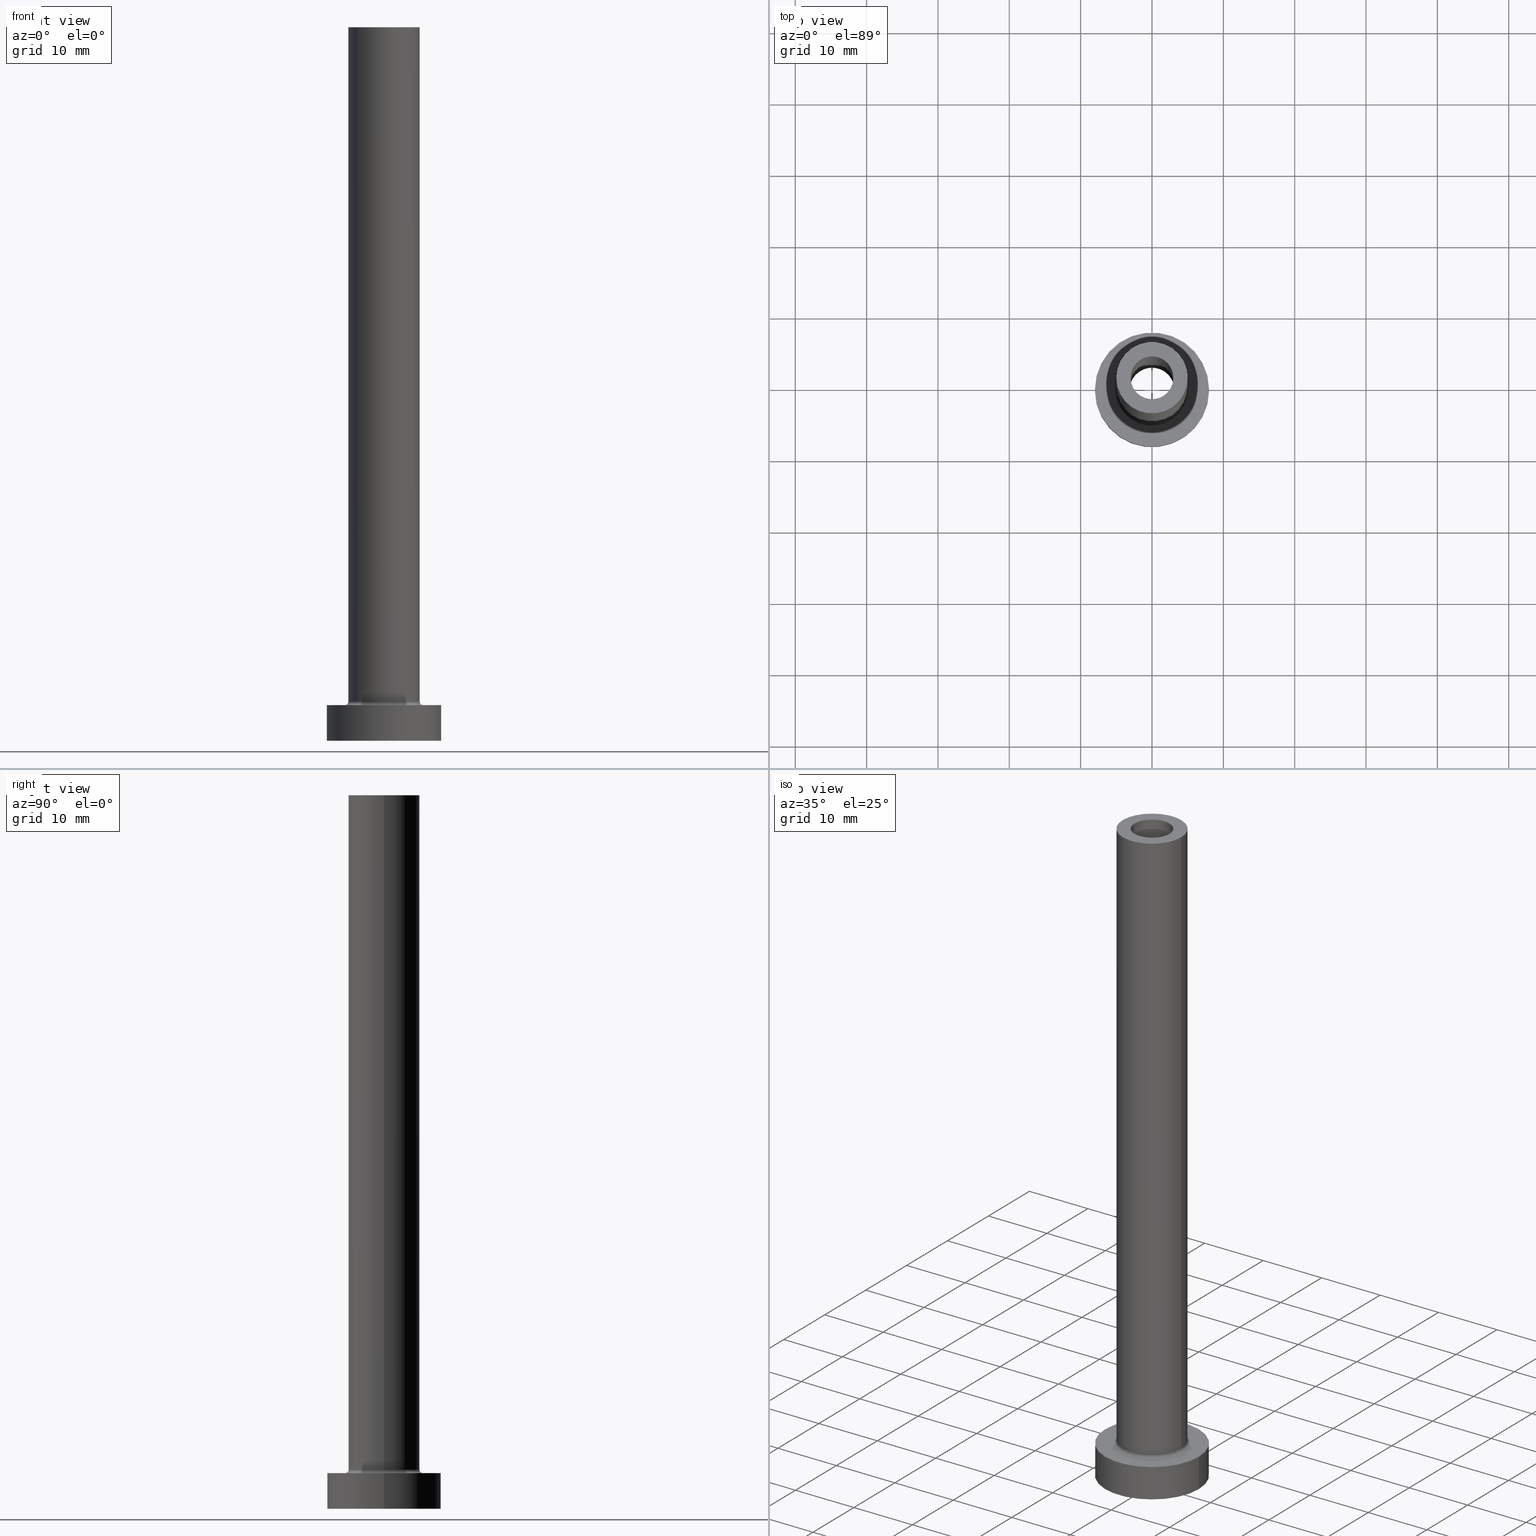
[diagram: canonical four-view strip — front | top / right | iso, engineering-drawing reading convention]
A machine part, canonical four-view strip (front | top / right | iso — engineering-drawing reading convention). The complete STEP part file that produces these views, byte-faithful:
ISO-10303-21;
HEADER;
FILE_DESCRIPTION (( 'STEP AP203' ),
    '1' );
FILE_NAME ('959d.STEP',
    '2023-02-13T10:10:27',
    ( '' ),
    ( '' ),
    'SwSTEP 2.0',
    'SolidWorks 2019',
    '' );
FILE_SCHEMA (( 'CONFIG_CONTROL_DESIGN' ));
ENDSEC;

DATA;
#1 =( NAMED_UNIT ( * ) SI_UNIT ( $, .STERADIAN. ) SOLID_ANGLE_UNIT ( ) );
#2 = ORIENTED_EDGE ( 'NONE', *, *, #260, .T. ) ;
#3 =( NAMED_UNIT ( * ) PLANE_ANGLE_UNIT ( ) SI_UNIT ( $, .RADIAN. ) );
#4 = EDGE_LOOP ( 'NONE', ( #128, #249 ) ) ;
#5 = CALENDAR_DATE ( 2023, 13, 2 ) ;
#6 = APPLICATION_CONTEXT ( 'configuration controlled 3d designs of mechanical parts and assemblies' ) ;
#7 = DIRECTION ( 'NONE',  ( -1.000000000000000000, 0.000000000000000000, 0.000000000000000000 ) ) ;
#8 = CIRCLE ( 'NONE', #15, 3.000000000000000444 ) ;
#9 = CALENDAR_DATE ( 2023, 13, 2 ) ;
#10 = ORIENTED_EDGE ( 'NONE', *, *, #90, .T. ) ;
#11 = DATE_AND_TIME ( #17, #453 ) ;
#12 = ORIENTED_EDGE ( 'NONE', *, *, #254, .F. ) ;
#13 = ADVANCED_FACE ( 'NONE', ( #389 ), #318, .T. ) ;
#14 = CARTESIAN_POINT ( 'NONE',  ( -3.000000000000000444, 0.000000000000000000, 100.0000000000000000 ) ) ;
#15 = AXIS2_PLACEMENT_3D ( 'NONE', #197, #325, #295 ) ;
#16 = CYLINDRICAL_SURFACE ( 'NONE', #324, 3.150000000000000355 ) ;
#17 = CALENDAR_DATE ( 2023, 13, 2 ) ;
#18 = EDGE_CURVE ( 'NONE', #321, #267, #390, .T. ) ;
#19 = APPROVAL_STATUS ( 'not_yet_approved' ) ;
#20 = DIRECTION ( 'NONE',  ( 1.000000000000000000, 0.000000000000000000, 0.000000000000000000 ) ) ;
#21 = AXIS2_PLACEMENT_3D ( 'NONE', #414, #207, #333 ) ;
#22 = FACE_OUTER_BOUND ( 'NONE', #413, .T. ) ;
#23 = CARTESIAN_POINT ( 'NONE',  ( 0.000000000000000000, 0.000000000000000000, 0.000000000000000000 ) ) ;
#24 = ORIENTED_EDGE ( 'NONE', *, *, #50, .F. ) ;
#25 = CARTESIAN_POINT ( 'NONE',  ( -5.000000000000000000, 0.000000000000000000, 100.0000000000000000 ) ) ;
#26 = ORIENTED_EDGE ( 'NONE', *, *, #195, .T. ) ;
#27 = DIRECTION ( 'NONE',  ( -0.000000000000000000, -0.000000000000000000, -1.000000000000000000 ) ) ;
#28 = VERTEX_POINT ( 'NONE', #244 ) ;
#29 = LINE ( 'NONE', #269, #268 ) ;
#30 = ORIENTED_EDGE ( 'NONE', *, *, #181, .F. ) ;
#31 = EDGE_CURVE ( 'NONE', #135, #165, #386, .T. ) ;
#32 = CARTESIAN_POINT ( 'NONE',  ( 8.000000000000000000, 9.797174393178825657E-16, 0.000000000000000000 ) ) ;
#33 = CARTESIAN_POINT ( 'NONE',  ( 8.000000000000000000, 9.797174393178825657E-16, 5.000000000000000000 ) ) ;
#34 = ORIENTED_EDGE ( 'NONE', *, *, #265, .T. ) ;
#35 = AXIS2_PLACEMENT_3D ( 'NONE', #180, #429, #139 ) ;
#36 = EDGE_CURVE ( 'NONE', #247, #282, #455, .T. ) ;
#37 = CARTESIAN_POINT ( 'NONE',  ( 0.000000000000000000, 0.000000000000000000, 5.000000000000000000 ) ) ;
#38 = APPLICATION_PROTOCOL_DEFINITION ( 'international standard', 'config_control_design', 1994, #6 ) ;
#39 = ORIENTED_EDGE ( 'NONE', *, *, #442, .T. ) ;
#40 = PERSON_AND_ORGANIZATION_ROLE ( 'creator' ) ;
#41 = ORIENTED_EDGE ( 'NONE', *, *, #459, .F. ) ;
#42 = AXIS2_PLACEMENT_3D ( 'NONE', #100, #409, #227 ) ;
#43 = CC_DESIGN_DATE_AND_TIME_ASSIGNMENT ( #250, #241, ( #235 ) ) ;
#44 = PERSON_AND_ORGANIZATION ( #344, #404 ) ;
#45 = ORIENTED_EDGE ( 'NONE', *, *, #239, .T. ) ;
#46 = EDGE_CURVE ( 'NONE', #273, #340, #54, .T. ) ;
#47 = COORDINATED_UNIVERSAL_TIME_OFFSET ( 1, 0, .AHEAD. ) ;
#48 = CYLINDRICAL_SURFACE ( 'NONE', #350, 3.000000000000000444 ) ;
#49 = PLANE ( 'NONE',  #418 ) ;
#50 = EDGE_CURVE ( 'NONE', #174, #210, #111, .T. ) ;
#51 = CALENDAR_DATE ( 2023, 13, 2 ) ;
#52 = CARTESIAN_POINT ( 'NONE',  ( -3.150000000000000355, 0.000000000000000000, 0.000000000000000000 ) ) ;
#53 = CC_DESIGN_PERSON_AND_ORGANIZATION_ASSIGNMENT ( #353, #288, ( #337 ) ) ;
#54 = CIRCLE ( 'NONE', #306, 5.000000000000000000 ) ;
#55 = CARTESIAN_POINT ( 'NONE',  ( 0.000000000000000000, 0.000000000000000000, 55.00000000000000711 ) ) ;
#56 = CARTESIAN_POINT ( 'NONE',  ( -3.000000000000000444, 0.000000000000000000, 100.0000000000000000 ) ) ;
#57 = AXIS2_PLACEMENT_3D ( 'NONE', #300, #64, #343 ) ;
#58 = CARTESIAN_POINT ( 'NONE',  ( 5.000000000000000000, 6.123233995736766282E-16, 100.0000000000000000 ) ) ;
#59 = VERTEX_POINT ( 'NONE', #215 ) ;
#60 = CYLINDRICAL_SURFACE ( 'NONE', #396, 8.000000000000000000 ) ;
#61 = DIRECTION ( 'NONE',  ( -1.000000000000000000, 0.000000000000000000, 0.000000000000000000 ) ) ;
#62 = EDGE_LOOP ( 'NONE', ( #30, #349 ) ) ;
#63 = EDGE_CURVE ( 'NONE', #267, #321, #221, .T. ) ;
#64 = DIRECTION ( 'NONE',  ( 0.000000000000000000, 0.000000000000000000, 1.000000000000000000 ) ) ;
#65 = ORIENTED_EDGE ( 'NONE', *, *, #125, .T. ) ;
#66 = FACE_OUTER_BOUND ( 'NONE', #270, .T. ) ;
#67 = VERTEX_POINT ( 'NONE', #52 ) ;
#68 = CARTESIAN_POINT ( 'NONE',  ( 0.000000000000000000, 0.000000000000000000, 63.90954544295050965 ) ) ;
#69 = CARTESIAN_POINT ( 'NONE',  ( 0.000000000000000000, 0.000000000000000000, 100.0000000000000000 ) ) ;
#70 = ORIENTED_EDGE ( 'NONE', *, *, #305, .T. ) ;
#71 = DIRECTION ( 'NONE',  ( -0.000000000000000000, -0.000000000000000000, -1.000000000000000000 ) ) ;
#72 = CARTESIAN_POINT ( 'NONE',  ( 0.000000000000000000, 0.000000000000000000, 0.000000000000000000 ) ) ;
#73 = CARTESIAN_POINT ( 'NONE',  ( 0.000000000000000000, 0.000000000000000000, 0.000000000000000000 ) ) ;
#74 = EDGE_LOOP ( 'NONE', ( #336, #45, #151, #70 ) ) ;
#75 = CC_DESIGN_DATE_AND_TIME_ASSIGNMENT ( #11, #86, ( #452 ) ) ;
#76 = ADVANCED_FACE ( 'NONE', ( #401 ), #297, .F. ) ;
#77 = ORIENTED_EDGE ( 'NONE', *, *, #265, .F. ) ;
#78 = AXIS2_PLACEMENT_3D ( 'NONE', #446, #408, #266 ) ;
#79 = CC_DESIGN_APPROVAL ( #103, ( #235 ) ) ;
#80 = DIRECTION ( 'NONE',  ( 0.000000000000000000, 0.000000000000000000, 1.000000000000000000 ) ) ;
#81 = CLOSED_SHELL ( 'NONE', ( #338, #209, #161, #13, #367, #319, #97, #212, #290, #274, #76, #425, #354, #131 ) ) ;
#82 = APPROVAL_DATE_TIME ( #400, #261 ) ;
#83 = PERSON_AND_ORGANIZATION_ROLE ( 'creator' ) ;
#84 = CARTESIAN_POINT ( 'NONE',  ( 0.000000000000000000, 0.000000000000000000, 5.000000000000000000 ) ) ;
#85 = AXIS2_PLACEMENT_3D ( 'NONE', #118, #292, #399 ) ;
#86 = DATE_TIME_ROLE ( 'classification_date' ) ;
#87 = CARTESIAN_POINT ( 'NONE',  ( 0.000000000000000000, 0.000000000000000000, 5.500000000000005329 ) ) ;
#88 = LINE ( 'NONE', #56, #342 ) ;
#89 = CARTESIAN_POINT ( 'NONE',  ( -8.000000000000000000, 0.000000000000000000, 0.000000000000000000 ) ) ;
#90 = EDGE_CURVE ( 'NONE', #107, #28, #253, .T. ) ;
#91 = CIRCLE ( 'NONE', #122, 3.000000000000000444 ) ;
#92 = LOCAL_TIME ( 11, 10, 27.00000000000000000, #296 ) ;
#93 = CARTESIAN_POINT ( 'NONE',  ( 5.000000000000000000, 6.123233995736766282E-16, 100.0000000000000000 ) ) ;
#94 = ORIENTED_EDGE ( 'NONE', *, *, #239, .F. ) ;
#95 = DIRECTION ( 'NONE',  ( 1.000000000000000000, 0.000000000000000000, 0.000000000000000000 ) ) ;
#96 = ORIENTED_EDGE ( 'NONE', *, *, #391, .T. ) ;
#97 = ADVANCED_FACE ( 'NONE', ( #436, #222 ), #49, .T. ) ;
#98 = CARTESIAN_POINT ( 'NONE',  ( 0.000000000000000000, 0.000000000000000000, 100.0000000000000000 ) ) ;
#99 = EDGE_LOOP ( 'NONE', ( #187, #242 ) ) ;
#100 = CARTESIAN_POINT ( 'NONE',  ( 0.000000000000000000, 0.000000000000000000, 100.0000000000000000 ) ) ;
#101 = ORIENTED_EDGE ( 'NONE', *, *, #18, .T. ) ;
#102 = EDGE_LOOP ( 'NONE', ( #383, #94 ) ) ;
#103 = APPROVAL ( #137, 'NEUR�EN�' ) ;
#104 = LINE ( 'NONE', #394, #341 ) ;
#105 = VERTEX_POINT ( 'NONE', #14 ) ;
#106 = LINE ( 'NONE', #388, #198 ) ;
#107 = VERTEX_POINT ( 'NONE', #360 ) ;
#108 = AXIS2_PLACEMENT_3D ( 'NONE', #362, #328, #326 ) ;
#109 = CARTESIAN_POINT ( 'NONE',  ( -8.000000000000000000, 0.000000000000000000, 5.000000000000000000 ) ) ;
#110 = CARTESIAN_POINT ( 'NONE',  ( 0.000000000000000000, 0.000000000000000000, 5.000000000000000000 ) ) ;
#111 = CIRCLE ( 'NONE', #327, 5.500000000000000000 ) ;
#112 = EDGE_CURVE ( 'NONE', #358, #345, #145, .T. ) ;
#113 = LINE ( 'NONE', #33, #461 ) ;
#114 = DIRECTION ( 'NONE',  ( 0.000000000000000000, 0.000000000000000000, 1.000000000000000000 ) ) ;
#115 = CARTESIAN_POINT ( 'NONE',  ( 5.500000000000000000, 0.000000000000000000, 5.000000000000002665 ) ) ;
#116 = CIRCLE ( 'NONE', #426, 3.150000000000000355 ) ;
#117 = DIRECTION ( 'NONE',  ( 0.000000000000000000, 0.000000000000000000, 1.000000000000000000 ) ) ;
#118 = CARTESIAN_POINT ( 'NONE',  ( -5.500000000000000000, 6.735557395310442023E-16, 5.500000000000005329 ) ) ;
#119 = CC_DESIGN_APPROVAL ( #384, ( #452 ) ) ;
#120 = DIRECTION ( 'NONE',  ( -1.000000000000000000, 0.000000000000000000, 0.000000000000000000 ) ) ;
#121 = AXIS2_PLACEMENT_3D ( 'NONE', #185, #114, #395 ) ;
#122 = AXIS2_PLACEMENT_3D ( 'NONE', #259, #220, #20 ) ;
#123 = DIRECTION ( 'NONE',  ( 0.000000000000000000, 0.000000000000000000, 1.000000000000000000 ) ) ;
#124 = AXIS2_PLACEMENT_3D ( 'NONE', #69, #431, #7 ) ;
#125 = EDGE_CURVE ( 'NONE', #358, #210, #370, .T. ) ;
#126 = DIRECTION ( 'NONE',  ( 1.000000000000000000, 0.000000000000000000, -0.000000000000000000 ) ) ;
#127 = CARTESIAN_POINT ( 'NONE',  ( -8.000000000000000000, 0.000000000000000000, 5.000000000000000000 ) ) ;
#128 = ORIENTED_EDGE ( 'NONE', *, *, #305, .F. ) ;
#129 = CIRCLE ( 'NONE', #316, 3.150000000000000355 ) ;
#130 = CYLINDRICAL_SURFACE ( 'NONE', #432, 8.000000000000000000 ) ;
#131 = ADVANCED_FACE ( 'NONE', ( #22 ), #48, .F. ) ;
#132 = PLANE ( 'NONE',  #451 ) ;
#133 = ORIENTED_EDGE ( 'NONE', *, *, #112, .T. ) ;
#134 = FACE_OUTER_BOUND ( 'NONE', #233, .T. ) ;
#135 = VERTEX_POINT ( 'NONE', #441 ) ;
#136 = CIRCLE ( 'NONE', #78, 0.5000000000000004441 ) ;
#137 = APPROVAL_STATUS ( 'not_yet_approved' ) ;
#138 = EDGE_LOOP ( 'NONE', ( #280, #10 ) ) ;
#139 = DIRECTION ( 'NONE',  ( 1.000000000000000000, 0.000000000000000000, 0.000000000000000000 ) ) ;
#140 = DIRECTION ( 'NONE',  ( 1.000000000000000000, 0.000000000000000000, 0.000000000000000000 ) ) ;
#141 = MECHANICAL_CONTEXT ( 'NONE', #439, 'mechanical' ) ;
#142 = ORIENTED_EDGE ( 'NONE', *, *, #419, .T. ) ;
#143 = UNCERTAINTY_MEASURE_WITH_UNIT (LENGTH_MEASURE( 1.000000000000000082E-05 ), #148, 'distance_accuracy_value', 'NONE');
#144 = DATE_AND_TIME ( #5, #238 ) ;
#145 = CIRCLE ( 'NONE', #216, 5.000000000000000000 ) ;
#146 = DIRECTION ( 'NONE',  ( 0.000000000000000000, 0.000000000000000000, 1.000000000000000000 ) ) ;
#147 = EDGE_CURVE ( 'NONE', #28, #107, #8, .T. ) ;
#148 =( LENGTH_UNIT ( ) NAMED_UNIT ( * ) SI_UNIT ( .MILLI., .METRE. ) );
#149 = DIRECTION ( 'NONE',  ( 0.000000000000000000, 0.000000000000000000, 1.000000000000000000 ) ) ;
#150 = PERSON_AND_ORGANIZATION_ROLE ( 'classification_officer' ) ;
#151 = ORIENTED_EDGE ( 'NONE', *, *, #332, .T. ) ;
#152 = AXIS2_PLACEMENT_3D ( 'NONE', #55, #192, #323 ) ;
#153 = DIRECTION ( 'NONE',  ( 1.000000000000000000, 0.000000000000000000, 0.000000000000000000 ) ) ;
#154 = CIRCLE ( 'NONE', #330, 5.000000000000000000 ) ;
#155 = CARTESIAN_POINT ( 'NONE',  ( 0.000000000000000000, 0.000000000000000000, 63.90954544295050965 ) ) ;
#156 = COORDINATED_UNIVERSAL_TIME_OFFSET ( 1, 0, .AHEAD. ) ;
#157 = DIRECTION ( 'NONE',  ( -1.000000000000000000, 0.000000000000000000, 0.000000000000000000 ) ) ;
#158 = CC_DESIGN_PERSON_AND_ORGANIZATION_ASSIGNMENT ( #361, #150, ( #452 ) ) ;
#159 = PERSON_AND_ORGANIZATION ( #344, #404 ) ;
#160 = PLANE ( 'NONE',  #162 ) ;
#161 = ADVANCED_FACE ( 'NONE', ( #405 ), #255, .F. ) ;
#162 = AXIS2_PLACEMENT_3D ( 'NONE', #298, #263, #407 ) ;
#163 = CARTESIAN_POINT ( 'NONE',  ( 0.000000000000000000, 0.000000000000000000, 100.0000000000000000 ) ) ;
#164 = DIRECTION ( 'NONE',  ( -0.000000000000000000, -0.000000000000000000, -1.000000000000000000 ) ) ;
#165 = VERTEX_POINT ( 'NONE', #257 ) ;
#166 = FACE_OUTER_BOUND ( 'NONE', #102, .T. ) ;
#167 = ORIENTED_EDGE ( 'NONE', *, *, #260, .F. ) ;
#168 = AXIS2_PLACEMENT_3D ( 'NONE', #378, #164, #416 ) ;
#169 = DIRECTION ( 'NONE',  ( -0.000000000000000000, -0.000000000000000000, -1.000000000000000000 ) ) ;
#170 = VERTEX_POINT ( 'NONE', #366 ) ;
#171 = CARTESIAN_POINT ( 'NONE',  ( 5.000000000000000000, 6.123233995736766282E-16, 5.500000000000005329 ) ) ;
#172 = ORIENTED_EDGE ( 'NONE', *, *, #442, .F. ) ;
#173 = DIRECTION ( 'NONE',  ( 0.000000000000000000, 0.000000000000000000, 1.000000000000000000 ) ) ;
#174 = VERTEX_POINT ( 'NONE', #115 ) ;
#175 = EDGE_CURVE ( 'NONE', #170, #105, #91, .T. ) ;
#176 = ORIENTED_EDGE ( 'NONE', *, *, #50, .T. ) ;
#177 = AXIS2_PLACEMENT_3D ( 'NONE', #72, #149, #140 ) ;
#178 = DIRECTION ( 'NONE',  ( 1.000000000000000000, 0.000000000000000000, 0.000000000000000000 ) ) ;
#179 = DIRECTION ( 'NONE',  ( 0.000000000000000000, 0.000000000000000000, 1.000000000000000000 ) ) ;
#180 = CARTESIAN_POINT ( 'NONE',  ( 0.000000000000000000, 0.000000000000000000, 5.000000000000000000 ) ) ;
#181 = EDGE_CURVE ( 'NONE', #105, #170, #387, .T. ) ;
#182 = ORIENTED_EDGE ( 'NONE', *, *, #252, .F. ) ;
#183 = DESIGN_CONTEXT ( 'detailed design', #6, 'design' ) ;
#184 = APPLICATION_PROTOCOL_DEFINITION ( 'international standard', 'config_control_design', 1994, #439 ) ;
#185 = CARTESIAN_POINT ( 'NONE',  ( 0.000000000000000000, 0.000000000000000000, 0.000000000000000000 ) ) ;
#186 = PERSON_AND_ORGANIZATION ( #344, #404 ) ;
#187 = ORIENTED_EDGE ( 'NONE', *, *, #63, .F. ) ;
#188 = APPROVAL_DATE_TIME ( #258, #384 ) ;
#189 = FACE_OUTER_BOUND ( 'NONE', #449, .T. ) ;
#190 = CC_DESIGN_APPROVAL ( #261, ( #331 ) ) ;
#191 = SHAPE_DEFINITION_REPRESENTATION ( #308, #447 ) ;
#192 = DIRECTION ( 'NONE',  ( 0.000000000000000000, 0.000000000000000000, 1.000000000000000000 ) ) ;
#193 = APPROVAL_ROLE ( '' ) ;
#194 = CARTESIAN_POINT ( 'NONE',  ( 0.000000000000000000, 0.000000000000000000, 100.0000000000000000 ) ) ;
#195 = EDGE_CURVE ( 'NONE', #210, #174, #444, .T. ) ;
#196 = PRODUCT_RELATED_PRODUCT_CATEGORY ( 'detail', '', ( #337 ) ) ;
#197 = CARTESIAN_POINT ( 'NONE',  ( 0.000000000000000000, 0.000000000000000000, 55.00000000000000711 ) ) ;
#198 = VECTOR ( 'NONE', #246, 1000.000000000000000 ) ;
#199 = FACE_BOUND ( 'NONE', #62, .T. ) ;
#200 = ORIENTED_EDGE ( 'NONE', *, *, #195, .F. ) ;
#201 = CYLINDRICAL_SURFACE ( 'NONE', #309, 3.000000000000000444 ) ;
#202 = EDGE_LOOP ( 'NONE', ( #456, #289 ) ) ;
#203 = DIRECTION ( 'NONE',  ( 0.000000000000000000, 0.000000000000000000, -1.000000000000000000 ) ) ;
#204 = ORIENTED_EDGE ( 'NONE', *, *, #147, .F. ) ;
#205 = AXIS2_PLACEMENT_3D ( 'NONE', #68, #385, #283 ) ;
#206 = CARTESIAN_POINT ( 'NONE',  ( 8.000000000000000000, 9.797174393178825657E-16, 5.000000000000000000 ) ) ;
#207 = DIRECTION ( 'NONE',  ( 0.000000000000000000, 0.000000000000000000, 1.000000000000000000 ) ) ;
#208 = ORIENTED_EDGE ( 'NONE', *, *, #406, .F. ) ;
#209 = ADVANCED_FACE ( 'NONE', ( #189 ), #16, .F. ) ;
#210 = VERTEX_POINT ( 'NONE', #402 ) ;
#211 = ORIENTED_EDGE ( 'NONE', *, *, #112, .F. ) ;
#212 = ADVANCED_FACE ( 'NONE', ( #224, #226 ), #160, .F. ) ;
#213 = EDGE_LOOP ( 'NONE', ( #334, #373 ) ) ;
#214 = MANIFOLD_SOLID_BREP ( 'Odebrat vysunut�m4', #81 ) ;
#215 = CARTESIAN_POINT ( 'NONE',  ( -3.150000000000000355, 0.000000000000000000, 55.00000000000000711 ) ) ;
#216 = AXIS2_PLACEMENT_3D ( 'NONE', #87, #329, #153 ) ;
#217 = ORIENTED_EDGE ( 'NONE', *, *, #175, .T. ) ;
#218 = DIRECTION ( 'NONE',  ( 1.000000000000000000, 0.000000000000000000, -0.000000000000000000 ) ) ;
#219 = SECURITY_CLASSIFICATION_LEVEL ( 'unclassified' ) ;
#220 = DIRECTION ( 'NONE',  ( 0.000000000000000000, 0.000000000000000000, 1.000000000000000000 ) ) ;
#221 = CIRCLE ( 'NONE', #121, 8.000000000000000000 ) ;
#222 = FACE_OUTER_BOUND ( 'NONE', #202, .T. ) ;
#223 = EDGE_CURVE ( 'NONE', #105, #28, #88, .T. ) ;
#224 = FACE_BOUND ( 'NONE', #4, .T. ) ;
#225 = PERSON_AND_ORGANIZATION_ROLE ( 'design_supplier' ) ;
#226 = FACE_OUTER_BOUND ( 'NONE', #99, .T. ) ;
#227 = DIRECTION ( 'NONE',  ( 1.000000000000000000, 0.000000000000000000, -0.000000000000000000 ) ) ;
#228 = CIRCLE ( 'NONE', #35, 8.000000000000000000 ) ;
#229 = CC_DESIGN_PERSON_AND_ORGANIZATION_ASSIGNMENT ( #427, #40, ( #235 ) ) ;
#230 = DIRECTION ( 'NONE',  ( 0.000000000000000000, 0.000000000000000000, 1.000000000000000000 ) ) ;
#231 = ORIENTED_EDGE ( 'NONE', *, *, #36, .F. ) ;
#232 = DIRECTION ( 'NONE',  ( 0.000000000000000000, 0.000000000000000000, -1.000000000000000000 ) ) ;
#233 = EDGE_LOOP ( 'NONE', ( #236, #142, #204, #355 ) ) ;
#234 = DIRECTION ( 'NONE',  ( 1.000000000000000000, 0.000000000000000000, 0.000000000000000000 ) ) ;
#235 = PRODUCT_DEFINITION ( 'NEZN�M�', '', #331, #183 ) ;
#236 = ORIENTED_EDGE ( 'NONE', *, *, #181, .T. ) ;
#237 = AXIS2_PLACEMENT_3D ( 'NONE', #454, #346, #275 ) ;
#238 = LOCAL_TIME ( 11, 10, 27.00000000000000000, #279 ) ;
#239 = EDGE_CURVE ( 'NONE', #135, #59, #403, .T. ) ;
#240 = DIRECTION ( 'NONE',  ( -0.000000000000000000, -0.000000000000000000, -1.000000000000000000 ) ) ;
#241 = DATE_TIME_ROLE ( 'creation_date' ) ;
#242 = ORIENTED_EDGE ( 'NONE', *, *, #18, .F. ) ;
#243 = DIRECTION ( 'NONE',  ( 1.000000000000000000, 0.000000000000000000, 0.000000000000000000 ) ) ;
#244 = CARTESIAN_POINT ( 'NONE',  ( -3.000000000000000444, 0.000000000000000000, 55.00000000000000711 ) ) ;
#245 = AXIS2_PLACEMENT_3D ( 'NONE', #434, #117, #364 ) ;
#246 = DIRECTION ( 'NONE',  ( 0.000000000000000000, 0.000000000000000000, -1.000000000000000000 ) ) ;
#247 = VERTEX_POINT ( 'NONE', #206 ) ;
#248 = AXIS2_PLACEMENT_3D ( 'NONE', #37, #146, #287 ) ;
#249 = ORIENTED_EDGE ( 'NONE', *, *, #374, .F. ) ;
#250 = DATE_AND_TIME ( #9, #433 ) ;
#251 = ORIENTED_EDGE ( 'NONE', *, *, #31, .T. ) ;
#252 = EDGE_CURVE ( 'NONE', #273, #345, #272, .T. ) ;
#253 = CIRCLE ( 'NONE', #152, 3.000000000000000444 ) ;
#254 = EDGE_CURVE ( 'NONE', #340, #273, #154, .T. ) ;
#255 = TOROIDAL_SURFACE ( 'NONE', #245, 5.500000000000000000, 0.5000000000000000000 ) ;
#256 = DIRECTION ( 'NONE',  ( 1.000000000000000000, 0.000000000000000000, 0.000000000000000000 ) ) ;
#257 = CARTESIAN_POINT ( 'NONE',  ( 3.150000000000000355, 3.857637417314163182E-16, 0.000000000000000000 ) ) ;
#258 = DATE_AND_TIME ( #51, #322 ) ;
#259 = CARTESIAN_POINT ( 'NONE',  ( 0.000000000000000000, 0.000000000000000000, 100.0000000000000000 ) ) ;
#260 = EDGE_CURVE ( 'NONE', #345, #174, #136, .T. ) ;
#261 = APPROVAL ( #440, 'NEUR�EN�' ) ;
#262 = DIRECTION ( 'NONE',  ( 0.000000000000000000, 0.000000000000000000, 1.000000000000000000 ) ) ;
#263 = DIRECTION ( 'NONE',  ( 0.000000000000000000, 0.000000000000000000, 1.000000000000000000 ) ) ;
#264 = CARTESIAN_POINT ( 'NONE',  ( 0.000000000000000000, 0.000000000000000000, 5.000000000000000000 ) ) ;
#265 = EDGE_CURVE ( 'NONE', #345, #358, #410, .T. ) ;
#266 = DIRECTION ( 'NONE',  ( 0.000000000000000000, 0.000000000000000000, -1.000000000000000000 ) ) ;
#267 = VERTEX_POINT ( 'NONE', #89 ) ;
#268 = VECTOR ( 'NONE', #232, 1000.000000000000000 ) ;
#269 = CARTESIAN_POINT ( 'NONE',  ( -3.150000000000000355, 0.000000000000000000, 63.90954544295050965 ) ) ;
#270 = EDGE_LOOP ( 'NONE', ( #231, #39, #101, #41 ) ) ;
#271 = CC_DESIGN_PERSON_AND_ORGANIZATION_ASSIGNMENT ( #320, #225, ( #331 ) ) ;
#272 = LINE ( 'NONE', #93, #363 ) ;
#273 = VERTEX_POINT ( 'NONE', #58 ) ;
#274 = ADVANCED_FACE ( 'NONE', ( #199, #372 ), #339, .T. ) ;
#275 = DIRECTION ( 'NONE',  ( 1.000000000000000000, 0.000000000000000000, 0.000000000000000000 ) ) ;
#276 = ORIENTED_EDGE ( 'NONE', *, *, #223, .T. ) ;
#277 = CIRCLE ( 'NONE', #57, 3.150000000000000355 ) ;
#278 = APPROVAL_PERSON_ORGANIZATION ( #44, #103, #460 ) ;
#279 = COORDINATED_UNIVERSAL_TIME_OFFSET ( 1, 0, .AHEAD. ) ;
#280 = ORIENTED_EDGE ( 'NONE', *, *, #147, .T. ) ;
#281 = DIRECTION ( 'NONE',  ( -1.000000000000000000, 0.000000000000000000, 0.000000000000000000 ) ) ;
#282 = VERTEX_POINT ( 'NONE', #127 ) ;
#283 = DIRECTION ( 'NONE',  ( -1.000000000000000000, 0.000000000000000000, 0.000000000000000000 ) ) ;
#284 = CARTESIAN_POINT ( 'NONE',  ( 3.150000000000000355, 3.857637417314163182E-16, 63.90954544295050965 ) ) ;
#285 = VECTOR ( 'NONE', #71, 1000.000000000000000 ) ;
#286 = APPROVAL_DATE_TIME ( #144, #103 ) ;
#287 = DIRECTION ( 'NONE',  ( 1.000000000000000000, 0.000000000000000000, 0.000000000000000000 ) ) ;
#288 = PERSON_AND_ORGANIZATION_ROLE ( 'design_owner' ) ;
#289 = ORIENTED_EDGE ( 'NONE', *, *, #36, .T. ) ;
#290 = ADVANCED_FACE ( 'NONE', ( #335 ), #457, .T. ) ;
#291 = ORIENTED_EDGE ( 'NONE', *, *, #294, .T. ) ;
#292 = DIRECTION ( 'NONE',  ( 1.224646799147353207E-16, 1.000000000000000000, -0.000000000000000000 ) ) ;
#293 = DIRECTION ( 'NONE',  ( 0.000000000000000000, 0.000000000000000000, -1.000000000000000000 ) ) ;
#294 = EDGE_CURVE ( 'NONE', #59, #135, #277, .T. ) ;
#295 = DIRECTION ( 'NONE',  ( 1.000000000000000000, 0.000000000000000000, 0.000000000000000000 ) ) ;
#296 = COORDINATED_UNIVERSAL_TIME_OFFSET ( 1, 0, .AHEAD. ) ;
#297 = TOROIDAL_SURFACE ( 'NONE', #368, 5.500000000000000000, 0.5000000000000000000 ) ;
#298 = CARTESIAN_POINT ( 'NONE',  ( 0.000000000000000000, 0.000000000000000000, 0.000000000000000000 ) ) ;
#299 = DIRECTION ( 'NONE',  ( 0.000000000000000000, 0.000000000000000000, -1.000000000000000000 ) ) ;
#300 = CARTESIAN_POINT ( 'NONE',  ( 0.000000000000000000, 0.000000000000000000, 55.00000000000000711 ) ) ;
#301 = ORIENTED_EDGE ( 'NONE', *, *, #90, .F. ) ;
#302 = CARTESIAN_POINT ( 'NONE',  ( 0.000000000000000000, 0.000000000000000000, 55.00000000000000711 ) ) ;
#303 = CARTESIAN_POINT ( 'NONE',  ( 0.000000000000000000, 0.000000000000000000, 100.0000000000000000 ) ) ;
#304 = ORIENTED_EDGE ( 'NONE', *, *, #252, .T. ) ;
#305 = EDGE_CURVE ( 'NONE', #67, #165, #116, .T. ) ;
#306 = AXIS2_PLACEMENT_3D ( 'NONE', #428, #179, #314 ) ;
#307 = FACE_BOUND ( 'NONE', #138, .T. ) ;
#308 = PRODUCT_DEFINITION_SHAPE ( 'NONE', 'NONE',  #235 ) ;
#309 = AXIS2_PLACEMENT_3D ( 'NONE', #303, #450, #448 ) ;
#310 = AXIS2_PLACEMENT_3D ( 'NONE', #357, #311, #178 ) ;
#311 = DIRECTION ( 'NONE',  ( 0.000000000000000000, 0.000000000000000000, 1.000000000000000000 ) ) ;
#312 = ORIENTED_EDGE ( 'NONE', *, *, #374, .T. ) ;
#313 = DIRECTION ( 'NONE',  ( -0.000000000000000000, -0.000000000000000000, -1.000000000000000000 ) ) ;
#314 = DIRECTION ( 'NONE',  ( 1.000000000000000000, 0.000000000000000000, 0.000000000000000000 ) ) ;
#315 = EDGE_LOOP ( 'NONE', ( #211, #65, #24, #167 ) ) ;
#316 = AXIS2_PLACEMENT_3D ( 'NONE', #73, #313, #243 ) ;
#317 = COORDINATED_UNIVERSAL_TIME_OFFSET ( 1, 0, .AHEAD. ) ;
#318 = CYLINDRICAL_SURFACE ( 'NONE', #124, 5.000000000000000000 ) ;
#319 = ADVANCED_FACE ( 'NONE', ( #412 ), #60, .T. ) ;
#320 = PERSON_AND_ORGANIZATION ( #344, #404 ) ;
#321 = VERTEX_POINT ( 'NONE', #32 ) ;
#322 = LOCAL_TIME ( 11, 10, 27.00000000000000000, #156 ) ;
#323 = DIRECTION ( 'NONE',  ( 1.000000000000000000, 0.000000000000000000, 0.000000000000000000 ) ) ;
#324 = AXIS2_PLACEMENT_3D ( 'NONE', #155, #293, #157 ) ;
#325 = DIRECTION ( 'NONE',  ( 0.000000000000000000, 0.000000000000000000, 1.000000000000000000 ) ) ;
#326 = DIRECTION ( 'NONE',  ( 1.000000000000000000, 0.000000000000000000, 0.000000000000000000 ) ) ;
#327 = AXIS2_PLACEMENT_3D ( 'NONE', #110, #393, #430 ) ;
#328 = DIRECTION ( 'NONE',  ( -0.000000000000000000, -0.000000000000000000, -1.000000000000000000 ) ) ;
#329 = DIRECTION ( 'NONE',  ( 0.000000000000000000, 0.000000000000000000, 1.000000000000000000 ) ) ;
#330 = AXIS2_PLACEMENT_3D ( 'NONE', #98, #230, #234 ) ;
#331 = PRODUCT_DEFINITION_FORMATION_WITH_SPECIFIED_SOURCE ( 'LIBOVOLN�', '', #337, .NOT_KNOWN. ) ;
#332 = EDGE_CURVE ( 'NONE', #59, #67, #29, .T. ) ;
#333 = DIRECTION ( 'NONE',  ( 1.000000000000000000, 0.000000000000000000, 0.000000000000000000 ) ) ;
#334 = ORIENTED_EDGE ( 'NONE', *, *, #254, .T. ) ;
#335 = FACE_OUTER_BOUND ( 'NONE', #415, .T. ) ;
#336 = ORIENTED_EDGE ( 'NONE', *, *, #31, .F. ) ;
#337 = PRODUCT ( '959d', '959d', '', ( #141 ) ) ;
#338 = ADVANCED_FACE ( 'NONE', ( #134 ), #201, .F. ) ;
#339 = PLANE ( 'NONE',  #42 ) ;
#340 = VERTEX_POINT ( 'NONE', #25 ) ;
#341 = VECTOR ( 'NONE', #422, 1000.000000000000000 ) ;
#342 = VECTOR ( 'NONE', #203, 1000.000000000000000 ) ;
#343 = DIRECTION ( 'NONE',  ( 1.000000000000000000, 0.000000000000000000, 0.000000000000000000 ) ) ;
#344 = PERSON ( 'NEUR�EN�', 'NEUR�EN�', 'NEUR�EN�', ('NEUR�EN�'), ('NEUR�EN�'), ('NEUR�EN�') ) ;
#345 = VERTEX_POINT ( 'NONE', #171 ) ;
#346 = DIRECTION ( 'NONE',  ( 0.000000000000000000, 0.000000000000000000, 1.000000000000000000 ) ) ;
#347 = ORIENTED_EDGE ( 'NONE', *, *, #125, .F. ) ;
#348 = FACE_OUTER_BOUND ( 'NONE', #74, .T. ) ;
#349 = ORIENTED_EDGE ( 'NONE', *, *, #175, .F. ) ;
#350 = AXIS2_PLACEMENT_3D ( 'NONE', #163, #299, #120 ) ;
#351 = DIRECTION ( 'NONE',  ( 0.000000000000000000, 0.000000000000000000, -1.000000000000000000 ) ) ;
#352 = EDGE_LOOP ( 'NONE', ( #347, #77, #2, #200 ) ) ;
#353 = PERSON_AND_ORGANIZATION ( #344, #404 ) ;
#354 = ADVANCED_FACE ( 'NONE', ( #307, #166 ), #132, .F. ) ;
#355 = ORIENTED_EDGE ( 'NONE', *, *, #223, .F. ) ;
#356 =( GEOMETRIC_REPRESENTATION_CONTEXT ( 3 ) GLOBAL_UNCERTAINTY_ASSIGNED_CONTEXT ( ( #143 ) ) GLOBAL_UNIT_ASSIGNED_CONTEXT ( ( #148, #3, #1 ) ) REPRESENTATION_CONTEXT ( 'NONE', 'WORKASPACE' ) );
#357 = CARTESIAN_POINT ( 'NONE',  ( 0.000000000000000000, 0.000000000000000000, 0.000000000000000000 ) ) ;
#358 = VERTEX_POINT ( 'NONE', #381 ) ;
#359 = APPROVAL_ROLE ( '' ) ;
#360 = CARTESIAN_POINT ( 'NONE',  ( 3.000000000000000444, 3.673940397442059868E-16, 55.00000000000000711 ) ) ;
#361 = PERSON_AND_ORGANIZATION ( #344, #404 ) ;
#362 = CARTESIAN_POINT ( 'NONE',  ( 0.000000000000000000, 0.000000000000000000, 5.000000000000000000 ) ) ;
#363 = VECTOR ( 'NONE', #169, 1000.000000000000000 ) ;
#364 = DIRECTION ( 'NONE',  ( 1.000000000000000000, 0.000000000000000000, 0.000000000000000000 ) ) ;
#365 = DIRECTION ( 'NONE',  ( 1.000000000000000000, 0.000000000000000000, 0.000000000000000000 ) ) ;
#366 = CARTESIAN_POINT ( 'NONE',  ( 3.000000000000000444, 3.673940397442059868E-16, 100.0000000000000000 ) ) ;
#367 = ADVANCED_FACE ( 'NONE', ( #66 ), #130, .T. ) ;
#368 = AXIS2_PLACEMENT_3D ( 'NONE', #445, #262, #256 ) ;
#369 = CARTESIAN_POINT ( 'NONE',  ( 0.000000000000000000, 0.000000000000000000, 5.000000000000000000 ) ) ;
#370 = CIRCLE ( 'NONE', #85, 0.5000000000000004441 ) ;
#371 = ORIENTED_EDGE ( 'NONE', *, *, #419, .F. ) ;
#372 = FACE_OUTER_BOUND ( 'NONE', #213, .T. ) ;
#373 = ORIENTED_EDGE ( 'NONE', *, *, #46, .T. ) ;
#374 = EDGE_CURVE ( 'NONE', #165, #67, #129, .T. ) ;
#375 = DIRECTION ( 'NONE',  ( -0.000000000000000000, -0.000000000000000000, -1.000000000000000000 ) ) ;
#376 = CC_DESIGN_SECURITY_CLASSIFICATION ( #452, ( #331 ) ) ;
#377 = EDGE_LOOP ( 'NONE', ( #424, #304, #34, #421 ) ) ;
#378 = CARTESIAN_POINT ( 'NONE',  ( 0.000000000000000000, 0.000000000000000000, 100.0000000000000000 ) ) ;
#379 = ORIENTED_EDGE ( 'NONE', *, *, #63, .T. ) ;
#380 = AXIS2_PLACEMENT_3D ( 'NONE', #194, #123, #365 ) ;
#381 = CARTESIAN_POINT ( 'NONE',  ( -5.000000000000000000, 0.000000000000000000, 5.500000000000005329 ) ) ;
#382 = CYLINDRICAL_SURFACE ( 'NONE', #205, 3.150000000000000355 ) ;
#383 = ORIENTED_EDGE ( 'NONE', *, *, #294, .F. ) ;
#384 = APPROVAL ( #19, 'NEUR�EN�' ) ;
#385 = DIRECTION ( 'NONE',  ( 0.000000000000000000, 0.000000000000000000, -1.000000000000000000 ) ) ;
#386 = LINE ( 'NONE', #284, #435 ) ;
#387 = CIRCLE ( 'NONE', #380, 3.000000000000000444 ) ;
#388 = CARTESIAN_POINT ( 'NONE',  ( 3.000000000000000444, 3.673940397442059868E-16, 100.0000000000000000 ) ) ;
#389 = FACE_OUTER_BOUND ( 'NONE', #377, .T. ) ;
#390 = CIRCLE ( 'NONE', #177, 8.000000000000000000 ) ;
#391 = EDGE_CURVE ( 'NONE', #340, #358, #104, .T. ) ;
#392 = LINE ( 'NONE', #109, #285 ) ;
#393 = DIRECTION ( 'NONE',  ( -0.000000000000000000, -0.000000000000000000, -1.000000000000000000 ) ) ;
#394 = CARTESIAN_POINT ( 'NONE',  ( -5.000000000000000000, 0.000000000000000000, 100.0000000000000000 ) ) ;
#395 = DIRECTION ( 'NONE',  ( 1.000000000000000000, 0.000000000000000000, 0.000000000000000000 ) ) ;
#396 = AXIS2_PLACEMENT_3D ( 'NONE', #369, #240, #61 ) ;
#397 = APPROVAL_PERSON_ORGANIZATION ( #159, #261, #359 ) ;
#398 = PERSON_AND_ORGANIZATION ( #344, #404 ) ;
#399 = DIRECTION ( 'NONE',  ( -1.000000000000000000, 1.224646799147351482E-16, 0.000000000000000000 ) ) ;
#400 = DATE_AND_TIME ( #443, #92 ) ;
#401 = FACE_OUTER_BOUND ( 'NONE', #352, .T. ) ;
#402 = CARTESIAN_POINT ( 'NONE',  ( -5.500000000000000000, 6.735557395310442023E-16, 5.000000000000002665 ) ) ;
#403 = CIRCLE ( 'NONE', #21, 3.150000000000000355 ) ;
#404 = ORGANIZATION ( 'NEUR�EN�', 'NEUR�EN�', '' ) ;
#405 = FACE_OUTER_BOUND ( 'NONE', #315, .T. ) ;
#406 = EDGE_CURVE ( 'NONE', #282, #247, #228, .T. ) ;
#407 = DIRECTION ( 'NONE',  ( 1.000000000000000000, 0.000000000000000000, -0.000000000000000000 ) ) ;
#408 = DIRECTION ( 'NONE',  ( 0.000000000000000000, -1.000000000000000000, 0.000000000000000000 ) ) ;
#409 = DIRECTION ( 'NONE',  ( 0.000000000000000000, 0.000000000000000000, 1.000000000000000000 ) ) ;
#410 = CIRCLE ( 'NONE', #237, 5.000000000000000000 ) ;
#411 = EDGE_LOOP ( 'NONE', ( #172, #208, #417, #379 ) ) ;
#412 = FACE_OUTER_BOUND ( 'NONE', #411, .T. ) ;
#413 = EDGE_LOOP ( 'NONE', ( #371, #217, #276, #301 ) ) ;
#414 = CARTESIAN_POINT ( 'NONE',  ( 0.000000000000000000, 0.000000000000000000, 55.00000000000000711 ) ) ;
#415 = EDGE_LOOP ( 'NONE', ( #182, #12, #96, #133 ) ) ;
#416 = DIRECTION ( 'NONE',  ( -1.000000000000000000, 0.000000000000000000, 0.000000000000000000 ) ) ;
#417 = ORIENTED_EDGE ( 'NONE', *, *, #459, .T. ) ;
#418 = AXIS2_PLACEMENT_3D ( 'NONE', #84, #80, #218 ) ;
#419 = EDGE_CURVE ( 'NONE', #170, #107, #106, .T. ) ;
#420 = DIRECTION ( 'NONE',  ( -0.000000000000000000, -0.000000000000000000, -1.000000000000000000 ) ) ;
#421 = ORIENTED_EDGE ( 'NONE', *, *, #391, .F. ) ;
#422 = DIRECTION ( 'NONE',  ( -0.000000000000000000, -0.000000000000000000, -1.000000000000000000 ) ) ;
#423 = EDGE_LOOP ( 'NONE', ( #176, #26 ) ) ;
#424 = ORIENTED_EDGE ( 'NONE', *, *, #46, .F. ) ;
#425 = ADVANCED_FACE ( 'NONE', ( #348 ), #382, .F. ) ;
#426 = AXIS2_PLACEMENT_3D ( 'NONE', #23, #27, #95 ) ;
#427 = PERSON_AND_ORGANIZATION ( #344, #404 ) ;
#428 = CARTESIAN_POINT ( 'NONE',  ( 0.000000000000000000, 0.000000000000000000, 100.0000000000000000 ) ) ;
#429 = DIRECTION ( 'NONE',  ( 0.000000000000000000, 0.000000000000000000, 1.000000000000000000 ) ) ;
#430 = DIRECTION ( 'NONE',  ( 1.000000000000000000, 0.000000000000000000, 0.000000000000000000 ) ) ;
#431 = DIRECTION ( 'NONE',  ( -0.000000000000000000, -0.000000000000000000, -1.000000000000000000 ) ) ;
#432 = AXIS2_PLACEMENT_3D ( 'NONE', #264, #375, #281 ) ;
#433 = LOCAL_TIME ( 11, 10, 27.00000000000000000, #317 ) ;
#434 = CARTESIAN_POINT ( 'NONE',  ( 0.000000000000000000, 0.000000000000000000, 5.500000000000005329 ) ) ;
#435 = VECTOR ( 'NONE', #351, 1000.000000000000000 ) ;
#436 = FACE_BOUND ( 'NONE', #423, .T. ) ;
#437 = CC_DESIGN_PERSON_AND_ORGANIZATION_ASSIGNMENT ( #186, #83, ( #331 ) ) ;
#438 = APPROVAL_PERSON_ORGANIZATION ( #398, #384, #193 ) ;
#439 = APPLICATION_CONTEXT ( 'configuration controlled 3d designs of mechanical parts and assemblies' ) ;
#440 = APPROVAL_STATUS ( 'not_yet_approved' ) ;
#441 = CARTESIAN_POINT ( 'NONE',  ( 3.150000000000000355, 3.857637417314163182E-16, 55.00000000000000711 ) ) ;
#442 = EDGE_CURVE ( 'NONE', #247, #321, #113, .T. ) ;
#443 = CALENDAR_DATE ( 2023, 13, 2 ) ;
#444 = CIRCLE ( 'NONE', #108, 5.500000000000000000 ) ;
#445 = CARTESIAN_POINT ( 'NONE',  ( 0.000000000000000000, 0.000000000000000000, 5.500000000000005329 ) ) ;
#446 = CARTESIAN_POINT ( 'NONE',  ( 5.500000000000000000, 0.000000000000000000, 5.500000000000005329 ) ) ;
#447 = ADVANCED_BREP_SHAPE_REPRESENTATION ( '959d', ( #214, #310 ), #356 ) ;
#448 = DIRECTION ( 'NONE',  ( -1.000000000000000000, 0.000000000000000000, 0.000000000000000000 ) ) ;
#449 = EDGE_LOOP ( 'NONE', ( #291, #251, #312, #458 ) ) ;
#450 = DIRECTION ( 'NONE',  ( 0.000000000000000000, 0.000000000000000000, -1.000000000000000000 ) ) ;
#451 = AXIS2_PLACEMENT_3D ( 'NONE', #302, #173, #126 ) ;
#452 = SECURITY_CLASSIFICATION ( '', '', #219 ) ;
#453 = LOCAL_TIME ( 11, 10, 27.00000000000000000, #47 ) ;
#454 = CARTESIAN_POINT ( 'NONE',  ( 0.000000000000000000, 0.000000000000000000, 5.500000000000005329 ) ) ;
#455 = CIRCLE ( 'NONE', #248, 8.000000000000000000 ) ;
#456 = ORIENTED_EDGE ( 'NONE', *, *, #406, .T. ) ;
#457 = CYLINDRICAL_SURFACE ( 'NONE', #168, 5.000000000000000000 ) ;
#458 = ORIENTED_EDGE ( 'NONE', *, *, #332, .F. ) ;
#459 = EDGE_CURVE ( 'NONE', #282, #267, #392, .T. ) ;
#460 = APPROVAL_ROLE ( '' ) ;
#461 = VECTOR ( 'NONE', #420, 1000.000000000000000 ) ;
ENDSEC;
END-ISO-10303-21;
